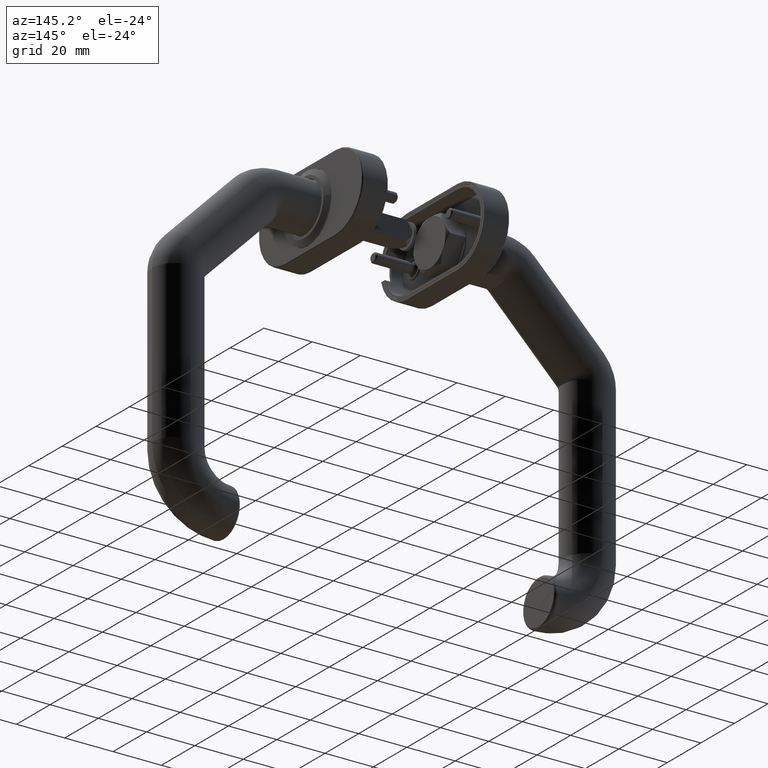
[diagram: clean part render]
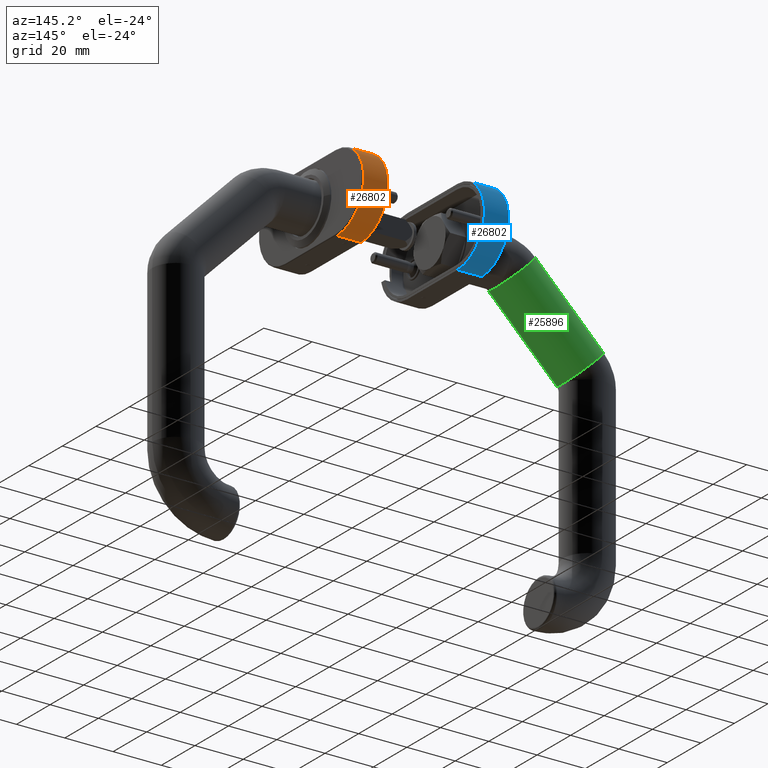
[diagram: same view with three faces highlighted in distinct colors, each labeled with its STEP entity id]
A machine part, auxiliary view with three faces highlighted in distinct colors.
Their STEP definitions:

[orange] entity #26802 — the highlighted cylindrical surface (partial cylindrical patch) has radius 16 mm, axis along (1, -0, -0).
#372 = DIRECTION ( 'NONE',  ( 0.000000000000000000, 0.000000000000000000, 1.000000000000000000 ) ) ;
#597 = LINE ( 'NONE', #22760, #26041 ) ;
#1120 = DIRECTION ( 'NONE',  ( 0.000000000000000000, 0.000000000000000000, 1.000000000000000000 ) ) ;
#1232 = CARTESIAN_POINT ( 'NONE',  ( 16.00000000000001421, 14.99999999999999822, -10.50000000000000000 ) ) ;
#1631 = EDGE_CURVE ( 'NONE', #38875, #33297, #14023, .T. ) ;
#1889 = ORIENTED_EDGE ( 'NONE', *, *, #1631, .T. ) ;
#2688 = CARTESIAN_POINT ( 'NONE',  ( -4.400605526280645814E-15, 15.00000000000000355, -10.50000000000000000 ) ) ;
#3514 = ORIENTED_EDGE ( 'NONE', *, *, #10836, .T. ) ;
#5078 = CARTESIAN_POINT ( 'NONE',  ( -4.400605526280645814E-15, 15.00000000000000355, -0.5000000000000004441 ) ) ;
#5914 = CYLINDRICAL_SURFACE ( 'NONE', #31348, 16.00000000000001421 ) ;
#9337 = DIRECTION ( 'NONE',  ( -0.000000000000000000, -0.000000000000000000, -1.000000000000000000 ) ) ;
#9771 = EDGE_LOOP ( 'NONE', ( #1889, #34333, #30963, #3514 ) ) ;
#10836 = EDGE_CURVE ( 'NONE', #22072, #38875, #25344, .T. ) ;
#12172 = CARTESIAN_POINT ( 'NONE',  ( -16.00000000000001421, 14.99999999999999467, -10.50000000000000000 ) ) ;
#13911 = AXIS2_PLACEMENT_3D ( 'NONE', #5078, #9337, #19912 ) ;
#14023 = LINE ( 'NONE', #12172, #16286 ) ;
#14652 = AXIS2_PLACEMENT_3D ( 'NONE', #22334, #372, #18392 ) ;
#16286 = VECTOR ( 'NONE', #1120, 1000.000000000000000 ) ;
#17676 = EDGE_CURVE ( 'NONE', #33297, #18342, #39582, .T. ) ;
#18342 = VERTEX_POINT ( 'NONE', #42761 ) ;
#18392 = DIRECTION ( 'NONE',  ( 1.000000000000000000, 0.000000000000000000, 0.000000000000000000 ) ) ;
#19912 = DIRECTION ( 'NONE',  ( 1.000000000000000000, 8.673617379884027583E-16, 0.000000000000000000 ) ) ;
#21689 = FACE_OUTER_BOUND ( 'NONE', #9771, .T. ) ;
#22072 = VERTEX_POINT ( 'NONE', #1232 ) ;
#22334 = CARTESIAN_POINT ( 'NONE',  ( -4.400605526280645814E-15, 15.00000000000000355, -10.50000000000000000 ) ) ;
#22760 = CARTESIAN_POINT ( 'NONE',  ( 16.00000000000001421, 14.99999999999999822, -10.50000000000000000 ) ) ;
#25344 = CIRCLE ( 'NONE', #14652, 16.00000000000001421 ) ;
#26041 = VECTOR ( 'NONE', #33358, 1000.000000000000000 ) ;
#26802 = ADVANCED_FACE ( 'NONE', ( #21689 ), #5914, .T. ) ;
#29025 = EDGE_CURVE ( 'NONE', #22072, #18342, #597, .T. ) ;
#30963 = ORIENTED_EDGE ( 'NONE', *, *, #29025, .F. ) ;
#31348 = AXIS2_PLACEMENT_3D ( 'NONE', #2688, #38243, #38394 ) ;
#31893 = CARTESIAN_POINT ( 'NONE',  ( -16.00000000000001421, 14.99999999999999467, -10.50000000000000000 ) ) ;
#33297 = VERTEX_POINT ( 'NONE', #42729 ) ;
#33358 = DIRECTION ( 'NONE',  ( 0.000000000000000000, 0.000000000000000000, 1.000000000000000000 ) ) ;
#34333 = ORIENTED_EDGE ( 'NONE', *, *, #17676, .T. ) ;
#38243 = DIRECTION ( 'NONE',  ( 0.000000000000000000, 0.000000000000000000, 1.000000000000000000 ) ) ;
#38394 = DIRECTION ( 'NONE',  ( 1.000000000000000000, 0.000000000000000000, 0.000000000000000000 ) ) ;
#38875 = VERTEX_POINT ( 'NONE', #31893 ) ;
#39582 = CIRCLE ( 'NONE', #13911, 16.00000000000001421 ) ;
#42729 = CARTESIAN_POINT ( 'NONE',  ( -16.00000000000001421, 14.99999999999999467, -0.5000000000000038858 ) ) ;
#42761 = CARTESIAN_POINT ( 'NONE',  ( 16.00000000000001421, 14.99999999999999822, -0.5000000000000038858 ) ) ;

[blue] entity #26802 — the highlighted cylindrical surface (partial cylindrical patch) has radius 16 mm, axis along (-1, 0, -0).
#372 = DIRECTION ( 'NONE',  ( 0.000000000000000000, 0.000000000000000000, 1.000000000000000000 ) ) ;
#597 = LINE ( 'NONE', #22760, #26041 ) ;
#1120 = DIRECTION ( 'NONE',  ( 0.000000000000000000, 0.000000000000000000, 1.000000000000000000 ) ) ;
#1232 = CARTESIAN_POINT ( 'NONE',  ( 16.00000000000001421, 14.99999999999999822, -10.50000000000000000 ) ) ;
#1631 = EDGE_CURVE ( 'NONE', #38875, #33297, #14023, .T. ) ;
#1889 = ORIENTED_EDGE ( 'NONE', *, *, #1631, .T. ) ;
#2688 = CARTESIAN_POINT ( 'NONE',  ( -4.400605526280645814E-15, 15.00000000000000355, -10.50000000000000000 ) ) ;
#3514 = ORIENTED_EDGE ( 'NONE', *, *, #10836, .T. ) ;
#5078 = CARTESIAN_POINT ( 'NONE',  ( -4.400605526280645814E-15, 15.00000000000000355, -0.5000000000000004441 ) ) ;
#5914 = CYLINDRICAL_SURFACE ( 'NONE', #31348, 16.00000000000001421 ) ;
#9337 = DIRECTION ( 'NONE',  ( -0.000000000000000000, -0.000000000000000000, -1.000000000000000000 ) ) ;
#9771 = EDGE_LOOP ( 'NONE', ( #1889, #34333, #30963, #3514 ) ) ;
#10836 = EDGE_CURVE ( 'NONE', #22072, #38875, #25344, .T. ) ;
#12172 = CARTESIAN_POINT ( 'NONE',  ( -16.00000000000001421, 14.99999999999999467, -10.50000000000000000 ) ) ;
#13911 = AXIS2_PLACEMENT_3D ( 'NONE', #5078, #9337, #19912 ) ;
#14023 = LINE ( 'NONE', #12172, #16286 ) ;
#14652 = AXIS2_PLACEMENT_3D ( 'NONE', #22334, #372, #18392 ) ;
#16286 = VECTOR ( 'NONE', #1120, 1000.000000000000000 ) ;
#17676 = EDGE_CURVE ( 'NONE', #33297, #18342, #39582, .T. ) ;
#18342 = VERTEX_POINT ( 'NONE', #42761 ) ;
#18392 = DIRECTION ( 'NONE',  ( 1.000000000000000000, 0.000000000000000000, 0.000000000000000000 ) ) ;
#19912 = DIRECTION ( 'NONE',  ( 1.000000000000000000, 8.673617379884027583E-16, 0.000000000000000000 ) ) ;
#21689 = FACE_OUTER_BOUND ( 'NONE', #9771, .T. ) ;
#22072 = VERTEX_POINT ( 'NONE', #1232 ) ;
#22334 = CARTESIAN_POINT ( 'NONE',  ( -4.400605526280645814E-15, 15.00000000000000355, -10.50000000000000000 ) ) ;
#22760 = CARTESIAN_POINT ( 'NONE',  ( 16.00000000000001421, 14.99999999999999822, -10.50000000000000000 ) ) ;
#25344 = CIRCLE ( 'NONE', #14652, 16.00000000000001421 ) ;
#26041 = VECTOR ( 'NONE', #33358, 1000.000000000000000 ) ;
#26802 = ADVANCED_FACE ( 'NONE', ( #21689 ), #5914, .T. ) ;
#29025 = EDGE_CURVE ( 'NONE', #22072, #18342, #597, .T. ) ;
#30963 = ORIENTED_EDGE ( 'NONE', *, *, #29025, .F. ) ;
#31348 = AXIS2_PLACEMENT_3D ( 'NONE', #2688, #38243, #38394 ) ;
#31893 = CARTESIAN_POINT ( 'NONE',  ( -16.00000000000001421, 14.99999999999999467, -10.50000000000000000 ) ) ;
#33297 = VERTEX_POINT ( 'NONE', #42729 ) ;
#33358 = DIRECTION ( 'NONE',  ( 0.000000000000000000, 0.000000000000000000, 1.000000000000000000 ) ) ;
#34333 = ORIENTED_EDGE ( 'NONE', *, *, #17676, .T. ) ;
#38243 = DIRECTION ( 'NONE',  ( 0.000000000000000000, 0.000000000000000000, 1.000000000000000000 ) ) ;
#38394 = DIRECTION ( 'NONE',  ( 1.000000000000000000, 0.000000000000000000, 0.000000000000000000 ) ) ;
#38875 = VERTEX_POINT ( 'NONE', #31893 ) ;
#39582 = CIRCLE ( 'NONE', #13911, 16.00000000000001421 ) ;
#42729 = CARTESIAN_POINT ( 'NONE',  ( -16.00000000000001421, 14.99999999999999467, -0.5000000000000038858 ) ) ;
#42761 = CARTESIAN_POINT ( 'NONE',  ( 16.00000000000001421, 14.99999999999999822, -0.5000000000000038858 ) ) ;

[green] entity #25896 — the highlighted cylindrical surface (bore or boss wall) has radius 9.8 mm, axis along (-0.7071, -0, -0.7071).
#1034 = AXIS2_PLACEMENT_3D ( 'NONE', #21407, #39599, #6919 ) ;
#2583 = FACE_OUTER_BOUND ( 'NONE', #8317, .T. ) ;
#4372 = DIRECTION ( 'NONE',  ( 0.7071067811865477948, 0.000000000000000000, 0.7071067811865474617 ) ) ;
#5555 = AXIS2_PLACEMENT_3D ( 'NONE', #26169, #26005, #4372 ) ;
#6444 = EDGE_CURVE ( 'NONE', #43836, #43836, #39745, .T. ) ;
#6919 = DIRECTION ( 'NONE',  ( 0.7071067811865479058, 0.000000000000000000, 0.7071067811865472397 ) ) ;
#8268 = FACE_OUTER_BOUND ( 'NONE', #33752, .T. ) ;
#8317 = EDGE_LOOP ( 'NONE', ( #9537 ) ) ;
#9537 = ORIENTED_EDGE ( 'NONE', *, *, #6444, .T. ) ;
#18430 = CIRCLE ( 'NONE', #34232, 9.800000000000000711 ) ;
#18607 = CARTESIAN_POINT ( 'NONE',  ( -5.857864376269041884, 0.000000000000000000, -34.14213562373094391 ) ) ;
#21407 = CARTESIAN_POINT ( 'NONE',  ( -12.78751083189720994, 0.000000000000000000, -41.07178207935911018 ) ) ;
#24785 = CARTESIAN_POINT ( 'NONE',  ( -41.07178207935908887, 0.000000000000000000, -12.78751083189721349 ) ) ;
#25078 = DIRECTION ( 'NONE',  ( 0.7071067811865473507, 0.000000000000000000, 0.7071067811865476838 ) ) ;
#25876 = ORIENTED_EDGE ( 'NONE', *, *, #37473, .F. ) ;
#25896 = ADVANCED_FACE ( 'NONE', ( #2583, #8268 ), #45544, .T. ) ;
#26005 = DIRECTION ( 'NONE',  ( -0.7071067811865475727, 0.000000000000000000, 0.7071067811865474617 ) ) ;
#26169 = CARTESIAN_POINT ( 'NONE',  ( -12.78751083189720994, 0.000000000000000000, -41.07178207935911018 ) ) ;
#33752 = EDGE_LOOP ( 'NONE', ( #25876 ) ) ;
#34232 = AXIS2_PLACEMENT_3D ( 'NONE', #24785, #39019, #25078 ) ;
#37473 = EDGE_CURVE ( 'NONE', #39290, #39290, #18430, .T. ) ;
#39019 = DIRECTION ( 'NONE',  ( -0.7071067811865475727, 0.000000000000000000, 0.7071067811865474617 ) ) ;
#39290 = VERTEX_POINT ( 'NONE', #41343 ) ;
#39599 = DIRECTION ( 'NONE',  ( -0.7071067811865473507, 0.000000000000000000, 0.7071067811865477948 ) ) ;
#39745 = CIRCLE ( 'NONE', #5555, 9.799999999999998934 ) ;
#41343 = CARTESIAN_POINT ( 'NONE',  ( -34.14213562373092259, 0.000000000000000000, -5.857864376269044548 ) ) ;
#43836 = VERTEX_POINT ( 'NONE', #18607 ) ;
#45544 = CYLINDRICAL_SURFACE ( 'NONE', #1034, 9.800000000000002487 ) ;